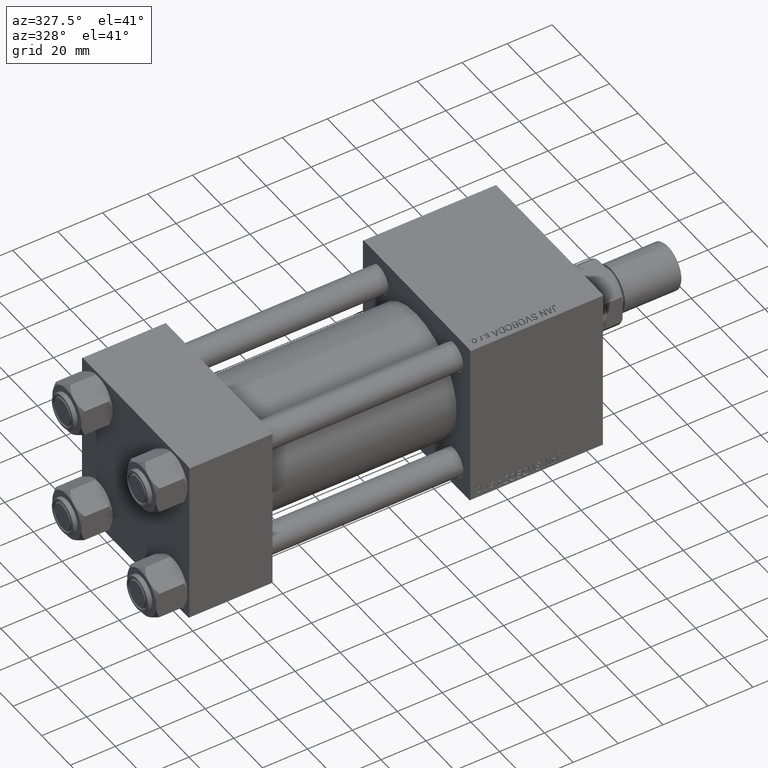
[diagram: clean part render]
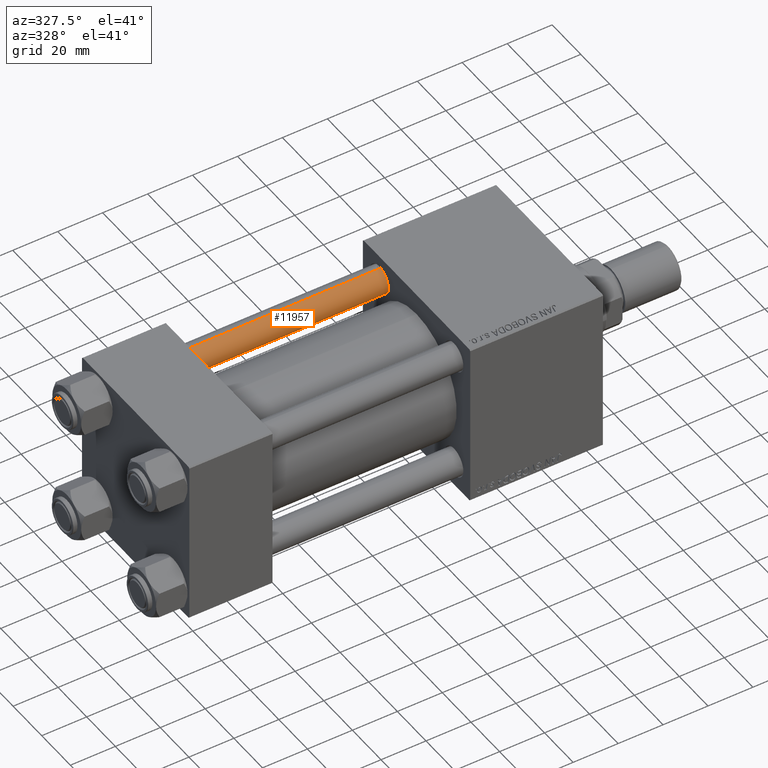
[diagram: same view with one face highlighted and labeled with its STEP entity id]
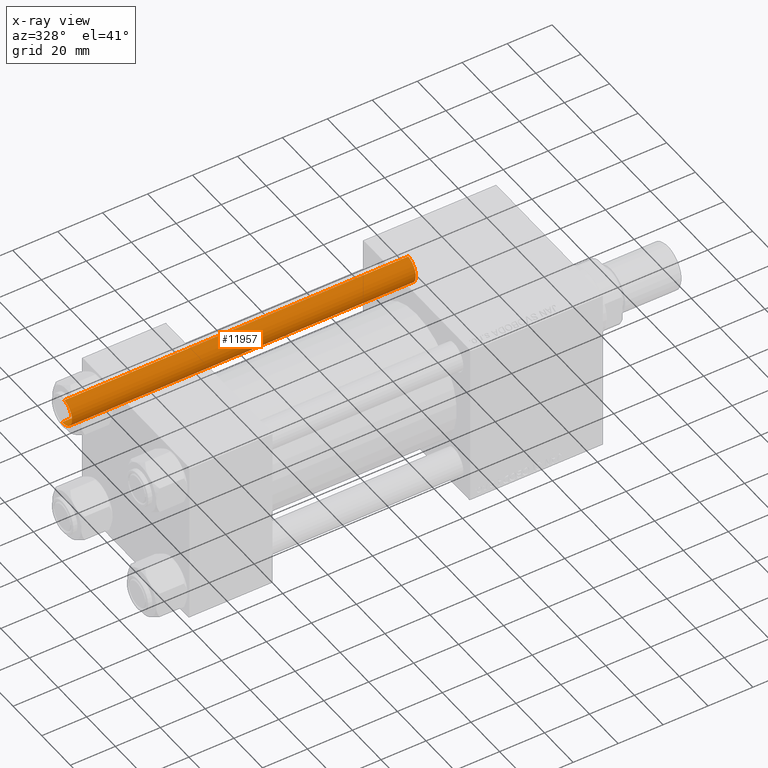
[diagram: x-ray of the same camera — body ghosted, the highlighted face saturated]
A machine part, auxiliary view. The second image highlights one B-rep face of the part: STEP entity #11957.
The next image is the same camera in x-ray: the body ghosted, the highlighted face saturated — about 0% of this face is hidden behind the body in this view.
In plain terms, the highlighted cylindrical surface (edge-blend (fillet) strip) has radius 6 mm, axis along (-1, 0, 0).
Its self-contained STEP definition (entity closure, byte-faithful):
#264 = FACE_OUTER_BOUND ( 'NONE', #3854, .T. ) ;
#2204 = CARTESIAN_POINT ( 'NONE',  ( 6.000000000000000888, 7.347880794884120722E-16, 153.5000000000000000 ) ) ;
#2895 = VERTEX_POINT ( 'NONE', #3016 ) ;
#3016 = CARTESIAN_POINT ( 'NONE',  ( -6.000000000000000888, 0.000000000000000000, 153.5000000000000000 ) ) ;
#3286 = VERTEX_POINT ( 'NONE', #2204 ) ;
#3854 = EDGE_LOOP ( 'NONE', ( #16046, #15677, #9599, #36517 ) ) ;
#3887 = CARTESIAN_POINT ( 'NONE',  ( -6.000000000000000888, 0.000000000000000000, 0.5000000000000281997 ) ) ;
#4910 = CARTESIAN_POINT ( 'NONE',  ( 6.000000000000000888, 7.347880794884120722E-16, 0.5000000000000281997 ) ) ;
#7138 = CARTESIAN_POINT ( 'NONE',  ( 0.000000000000000000, 0.000000000000000000, 153.5000000000000000 ) ) ;
#9599 = ORIENTED_EDGE ( 'NONE', *, *, #16349, .T. ) ;
#9761 = VERTEX_POINT ( 'NONE', #3887 ) ;
#11084 = VECTOR ( 'NONE', #28105, 1000.000000000000000 ) ;
#11538 = DIRECTION ( 'NONE',  ( 1.000000000000000000, 0.000000000000000000, 0.000000000000000000 ) ) ;
#11957 = ADVANCED_FACE ( 'NONE', ( #264 ), #48149, .T. ) ;
#13597 = DIRECTION ( 'NONE',  ( -0.000000000000000000, -0.000000000000000000, -1.000000000000000000 ) ) ;
#13621 = EDGE_CURVE ( 'NONE', #9761, #35753, #31877, .T. ) ;
#15677 = ORIENTED_EDGE ( 'NONE', *, *, #34324, .T. ) ;
#15897 = DIRECTION ( 'NONE',  ( -1.000000000000000000, 0.000000000000000000, 0.000000000000000000 ) ) ;
#16046 = ORIENTED_EDGE ( 'NONE', *, *, #48182, .F. ) ;
#16349 = EDGE_CURVE ( 'NONE', #2895, #9761, #33063, .T. ) ;
#17214 = AXIS2_PLACEMENT_3D ( 'NONE', #32032, #35360, #15897 ) ;
#22769 = DIRECTION ( 'NONE',  ( 1.000000000000000000, 0.000000000000000000, 0.000000000000000000 ) ) ;
#27074 = CARTESIAN_POINT ( 'NONE',  ( 6.000000000000000888, 7.347880794884120722E-16, 154.0000000000000000 ) ) ;
#28105 = DIRECTION ( 'NONE',  ( -0.000000000000000000, -0.000000000000000000, -1.000000000000000000 ) ) ;
#30344 = AXIS2_PLACEMENT_3D ( 'NONE', #7138, #38141, #22769 ) ;
#31698 = LINE ( 'NONE', #27074, #11084 ) ;
#31877 = CIRCLE ( 'NONE', #34307, 6.000000000000000888 ) ;
#32032 = CARTESIAN_POINT ( 'NONE',  ( 0.000000000000000000, 0.000000000000000000, 154.0000000000000000 ) ) ;
#33063 = LINE ( 'NONE', #48680, #36043 ) ;
#34307 = AXIS2_PLACEMENT_3D ( 'NONE', #34848, #50209, #11538 ) ;
#34324 = EDGE_CURVE ( 'NONE', #3286, #2895, #41837, .T. ) ;
#34848 = CARTESIAN_POINT ( 'NONE',  ( 0.000000000000000000, 0.000000000000000000, 0.5000000000000281997 ) ) ;
#35360 = DIRECTION ( 'NONE',  ( -0.000000000000000000, -0.000000000000000000, -1.000000000000000000 ) ) ;
#35753 = VERTEX_POINT ( 'NONE', #4910 ) ;
#36043 = VECTOR ( 'NONE', #13597, 1000.000000000000000 ) ;
#36517 = ORIENTED_EDGE ( 'NONE', *, *, #13621, .T. ) ;
#38141 = DIRECTION ( 'NONE',  ( 0.000000000000000000, 0.000000000000000000, -1.000000000000000000 ) ) ;
#41837 = CIRCLE ( 'NONE', #30344, 6.000000000000000888 ) ;
#48149 = CYLINDRICAL_SURFACE ( 'NONE', #17214, 6.000000000000000888 ) ;
#48182 = EDGE_CURVE ( 'NONE', #3286, #35753, #31698, .T. ) ;
#48680 = CARTESIAN_POINT ( 'NONE',  ( -6.000000000000000888, 0.000000000000000000, 154.0000000000000000 ) ) ;
#50209 = DIRECTION ( 'NONE',  ( -0.000000000000000000, -0.000000000000000000, 1.000000000000000000 ) ) ;